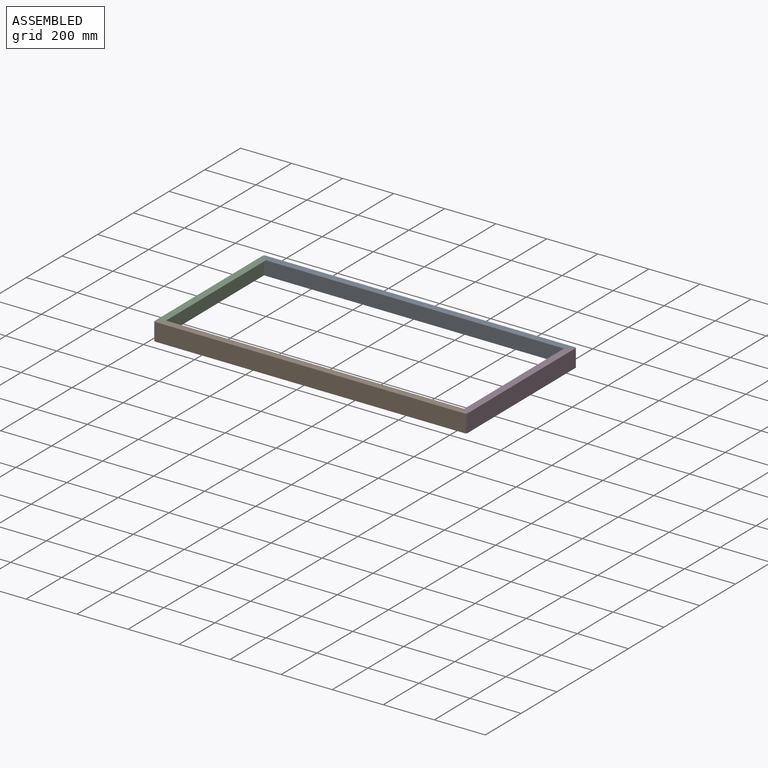
[diagram: assembled view]
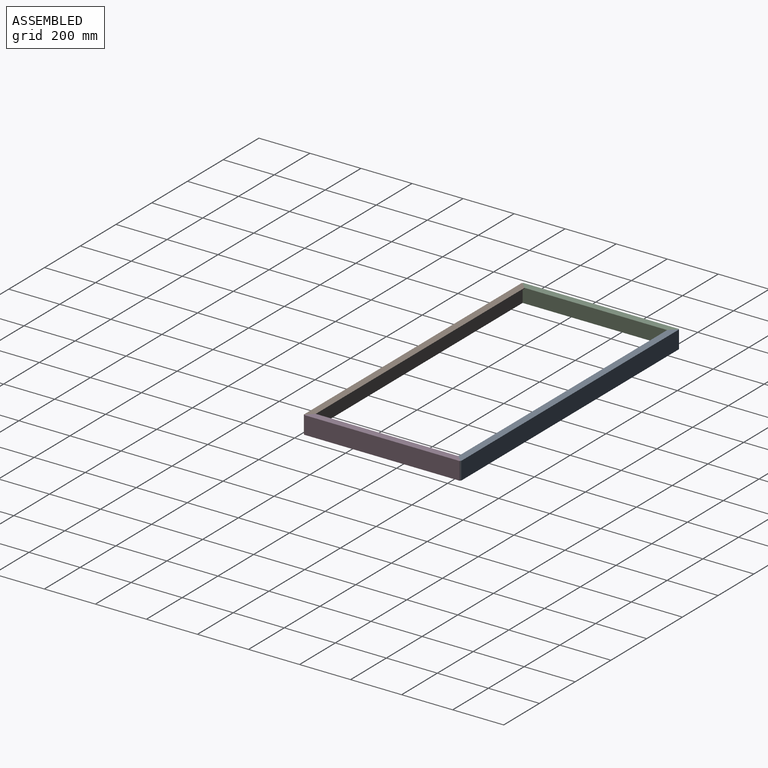
[diagram: assembled view, second angle]
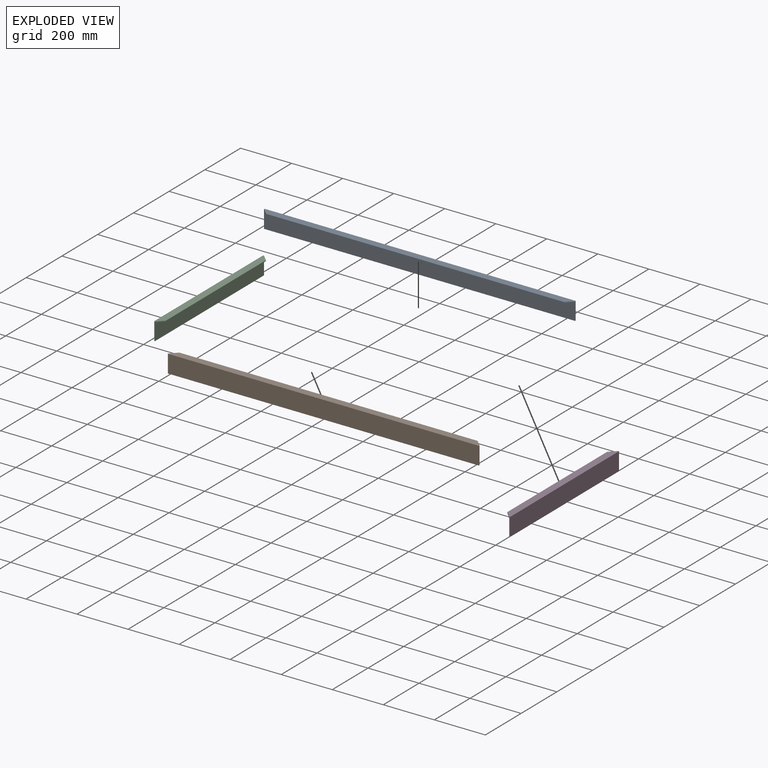
[diagram: exploded view]
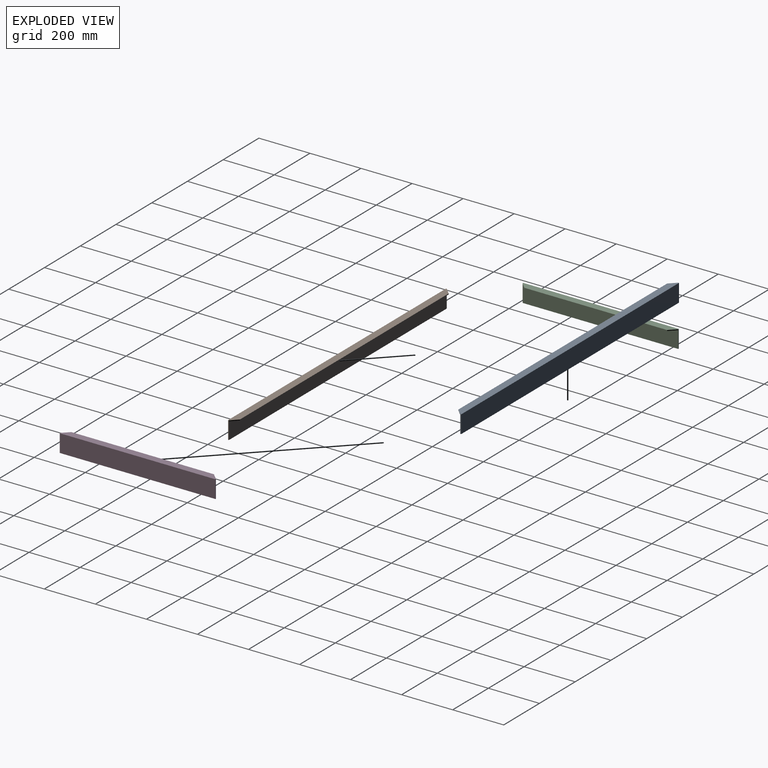
[diagram: exploded view, second angle]
ASSEMBLY  parts=4 mates=6
PART A: 10 faces, bbox 1219.2x28.6x69.9 mm
  f0: plane 1219.2x66.68mm, normal (0,1,0), area 81290.2mm2, adj f1,f3,f4,f6
  f1: plane 69.85x3.18mm, normal (1,0,0), area 221.8mm2, adj f0,f2,f4,f5,f8
  f2: plane 1219.2x28.58mm, normal (0,0,1), area 34193.5mm2, adj f1,f3,f5,f7,f8,f9
  f3: plane 69.85x3.18mm, normal (-1,0,0), area 221.8mm2, adj f0,f2,f4,f5,f9
  f4: plane 1219.2x3.18mm, normal (0,0,-1), area 3871mm2, adj f0,f1,f3,f5
  f5: plane 1219.2x69.85mm, normal (0,-1,0), area 85161.1mm2, adj f1,f2,f3,f4
  f6: plane 1219.2x25.4mm, normal (0,0,-1), area 30322.5mm2, adj f0,f7,f8,f9
  f7: plane 1168.4x3.18mm, normal (0,1,0), area 3709.7mm2, adj f2,f6,f8,f9
  f8: plane 25.4x25.4mm, normal (0.71,0.71,0), area 114mm2, adj f1,f2,f6,f7
  f9: plane 25.4x25.4mm, normal (-0.71,0.71,0), area 114mm2, adj f2,f3,f6,f7
PART B: same geometry as A
PART C: 10 faces, bbox 609.6x28.6x69.9 mm
  f0: plane 609.6x25.4mm, normal (0,0,-1), area 14838.7mm2, adj f1,f6,f7,f9
  f1: plane 609.6x66.68mm, normal (0,1,0), area 40645.1mm2, adj f0,f3,f5,f8
  f2: plane 609.6x28.58mm, normal (0,0,1), area 16774.2mm2, adj f4,f5,f6,f7,f8,f9
  f3: plane 609.6x3.18mm, normal (0,0,-1), area 1935.5mm2, adj f1,f4,f5,f8
  f4: plane 609.6x69.85mm, normal (0,-1,0), area 42580.6mm2, adj f2,f3,f5,f8
  f5: plane 69.85x3.18mm, normal (1,0,0), area 221.8mm2, adj f1,f2,f3,f4,f7
  f6: plane 558.8x3.18mm, normal (0,1,0), area 1774.2mm2, adj f0,f2,f7,f9
  f7: plane 25.4x25.4mm, normal (0.71,0.71,0), area 114mm2, adj f0,f2,f5,f6
  f8: plane 69.85x3.18mm, normal (-1,0,0), area 221.8mm2, adj f1,f2,f3,f4,f9
  f9: plane 25.4x25.4mm, normal (-0.71,0.71,0), area 114mm2, adj f0,f2,f6,f8
PART D: same geometry as C
PLACE A rot(axis=(0,0,1),180deg) t=(2.68,598.41,-2.45)mm fixed
PLACE B t=(2.68,-11.19,-2.45)mm fixed
PLACE C rot(axis=(0,0,-1),90deg) t=(-606.92,598.41,-124.37)mm
PLACE D rot(axis=(0,0,1),90deg) t=(612.28,-11.19,-124.37)mm
MATE planar C.f7 <-> B.f9  axis (0.71,-0.71,0) through (-594.22,1.51,30.89)mm
MATE planar B.f9 <-> C.f7  axis (-0.71,0.71,0) through (-594.22,1.51,30.89)mm
MATE planar B.f2 <-> D.f2  axis (0,0,1) through (2.68,-0.19,32.48)mm
MATE planar A.f9 <-> D.f7  axis (0.71,-0.71,0) through (599.58,585.71,30.89)mm
MATE planar C.f2 <-> A.f2  axis (0,0,1) through (-596.03,293.61,32.48)mm
MATE planar D.f9 <-> B.f8  axis (-0.71,-0.71,0) through (599.58,1.51,30.89)mm
